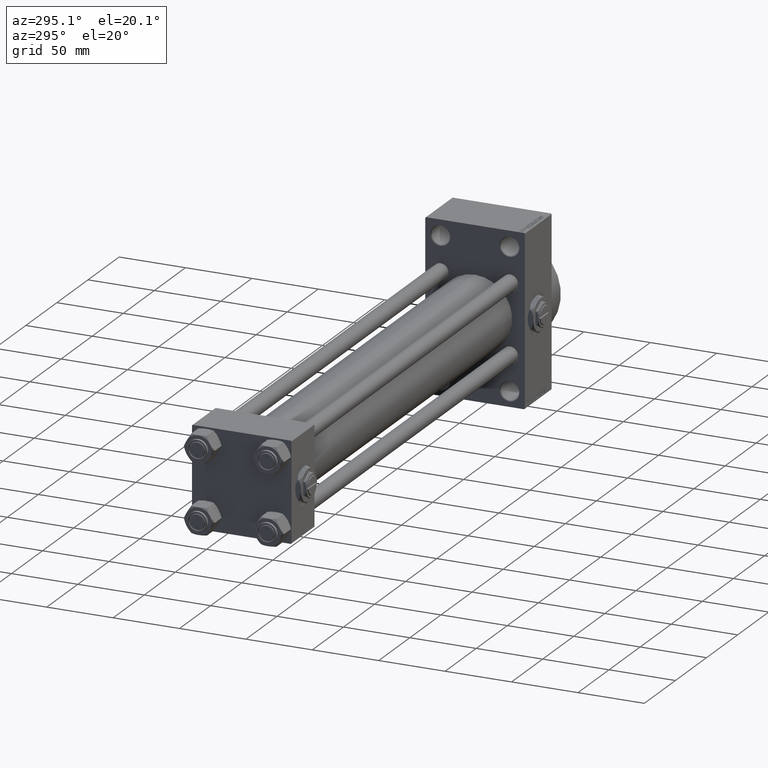
[diagram: clean part render]
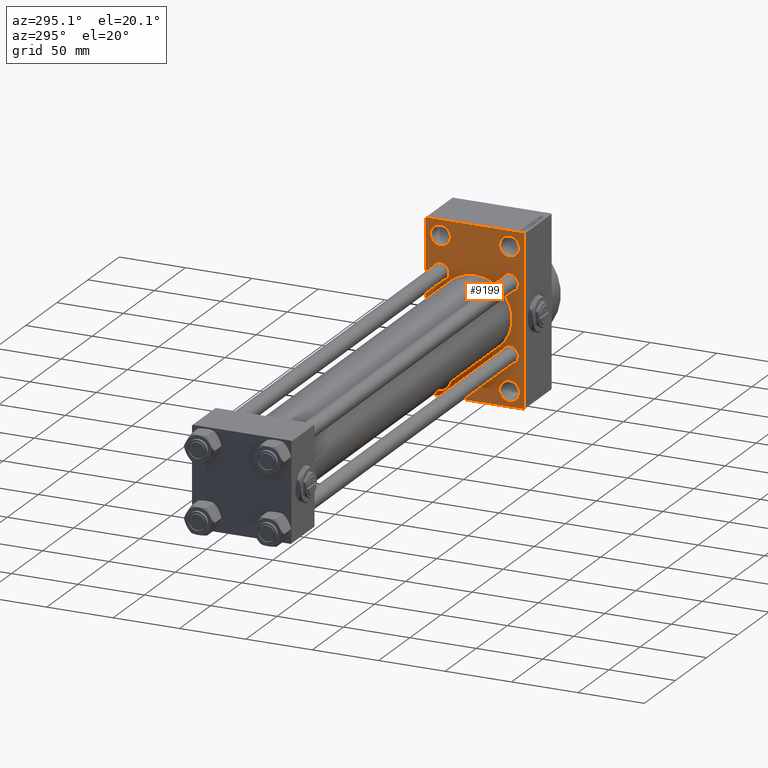
[diagram: same view with one face highlighted and labeled with its STEP entity id]
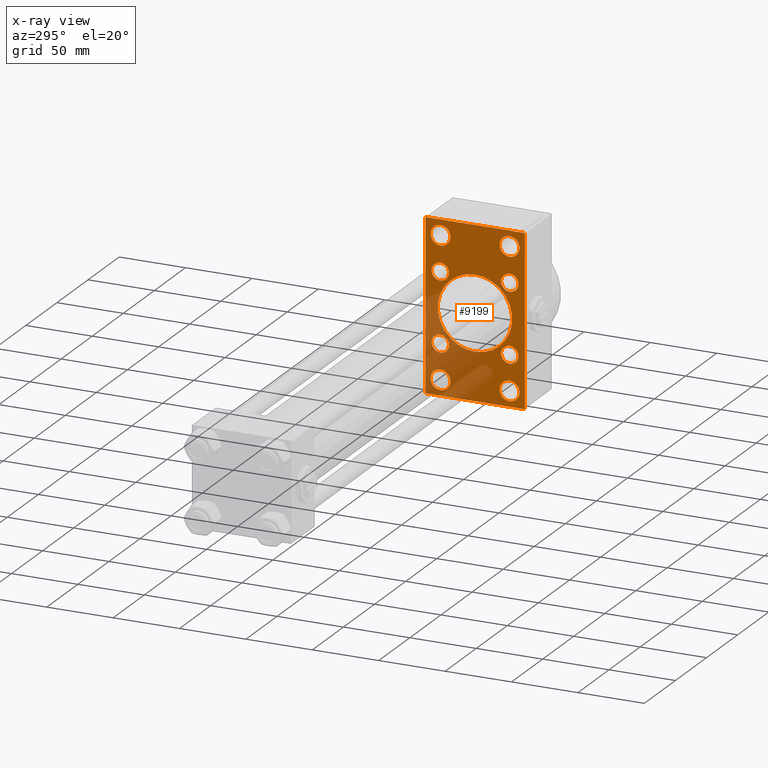
[diagram: x-ray of the same camera — body ghosted, the highlighted face saturated]
A machine part, auxiliary view. The second image highlights one B-rep face of the part: STEP entity #9199.
The next image is the same camera in x-ray: the body ghosted, the highlighted face saturated — about 27% of this face is hidden behind the body in this view.
In plain terms, the highlighted planar face has unit normal (-1, 0, 0).
Its self-contained STEP definition (entity closure, byte-faithful):
#104 = CIRCLE ( 'NONE', #17720, 7.500000000000117240 ) ;
#445 = CIRCLE ( 'NONE', #25243, 7.500000000000117240 ) ;
#872 = ORIENTED_EDGE ( 'NONE', *, *, #15986, .T. ) ;
#1025 = CIRCLE ( 'NONE', #10635, 6.500000000000008882 ) ;
#1586 = CIRCLE ( 'NONE', #18399, 6.500000000000008882 ) ;
#1684 = DIRECTION ( 'NONE',  ( 1.000000000000000000, -0.000000000000000000, 0.000000000000000000 ) ) ;
#2531 = CARTESIAN_POINT ( 'NONE',  ( 375.0000000000000000, 26.14999999999999858, -19.64999999999999503 ) ) ;
#2874 = DIRECTION ( 'NONE',  ( 0.000000000000000000, 0.000000000000000000, 1.000000000000000000 ) ) ;
#2977 = DIRECTION ( 'NONE',  ( 0.000000000000000000, 0.000000000000000000, -1.000000000000000000 ) ) ;
#3120 = DIRECTION ( 'NONE',  ( 1.000000000000000000, -0.000000000000000000, 0.000000000000000000 ) ) ;
#3227 = DIRECTION ( 'NONE',  ( 1.000000000000000000, -0.000000000000000000, 0.000000000000000000 ) ) ;
#3413 = DIRECTION ( 'NONE',  ( 0.000000000000000000, -1.000000000000000000, -1.850371707708594563E-16 ) ) ;
#3661 = EDGE_LOOP ( 'NONE', ( #27365, #15589 ) ) ;
#3766 = DIRECTION ( 'NONE',  ( 0.000000000000000000, 0.000000000000000000, 1.000000000000000000 ) ) ;
#3787 = DIRECTION ( 'NONE',  ( 1.000000000000000000, -0.000000000000000000, 0.000000000000000000 ) ) ;
#3961 = DIRECTION ( 'NONE',  ( 0.000000000000000000, 0.000000000000000000, -1.000000000000000000 ) ) ;
#4136 = ORIENTED_EDGE ( 'NONE', *, *, #20950, .T. ) ;
#4397 = EDGE_CURVE ( 'NONE', #45048, #40664, #18858, .T. ) ;
#4447 = CARTESIAN_POINT ( 'NONE',  ( 375.0000000000000000, 26.14999999999999858, 19.64999999999999147 ) ) ;
#4717 = EDGE_LOOP ( 'NONE', ( #4136, #7734 ) ) ;
#5068 = ORIENTED_EDGE ( 'NONE', *, *, #45119, .T. ) ;
#5356 = AXIS2_PLACEMENT_3D ( 'NONE', #11742, #35263, #35506 ) ;
#5994 = VERTEX_POINT ( 'NONE', #13442 ) ;
#6206 = CARTESIAN_POINT ( 'NONE',  ( 375.0000000000000000, 26.14999999999999858, -26.15000000000000213 ) ) ;
#6747 = CARTESIAN_POINT ( 'NONE',  ( 375.0000000000000000, -26.14999999999999147, -32.65000000000001990 ) ) ;
#6758 = ORIENTED_EDGE ( 'NONE', *, *, #21808, .T. ) ;
#6927 = DIRECTION ( 'NONE',  ( 1.000000000000000000, -0.000000000000000000, 0.000000000000000000 ) ) ;
#7037 = DIRECTION ( 'NONE',  ( 1.000000000000000000, -0.000000000000000000, 0.000000000000000000 ) ) ;
#7039 = VECTOR ( 'NONE', #20960, 1000.000000000000000 ) ;
#7141 = CARTESIAN_POINT ( 'NONE',  ( 375.0000000000000000, -26.14999999999999147, -26.15000000000000924 ) ) ;
#7174 = CIRCLE ( 'NONE', #22359, 6.500000000000008882 ) ;
#7247 = DIRECTION ( 'NONE',  ( 1.000000000000000000, 0.000000000000000000, 0.000000000000000000 ) ) ;
#7385 = CARTESIAN_POINT ( 'NONE',  ( 375.0000000000000000, -26.14999999999999147, -19.65000000000000213 ) ) ;
#7550 = CARTESIAN_POINT ( 'NONE',  ( 375.0000000000000000, -25.99999999999999645, -52.49999999999999289 ) ) ;
#7658 = CARTESIAN_POINT ( 'NONE',  ( 375.0000000000000000, 26.14999999999999858, 26.15000000000000213 ) ) ;
#7734 = ORIENTED_EDGE ( 'NONE', *, *, #27567, .T. ) ;
#7809 = DIRECTION ( 'NONE',  ( -1.000000000000000000, 0.000000000000000000, -0.000000000000000000 ) ) ;
#7853 = CARTESIAN_POINT ( 'NONE',  ( 375.0000000000000000, -25.99999999999999645, 60.00000000000011369 ) ) ;
#8336 = DIRECTION ( 'NONE',  ( 1.000000000000000000, -0.000000000000000000, 0.000000000000000000 ) ) ;
#8826 = AXIS2_PLACEMENT_3D ( 'NONE', #11267, #7037, #3766 ) ;
#8968 = VECTOR ( 'NONE', #30366, 1000.000000000000000 ) ;
#9199 = ADVANCED_FACE ( 'NONE', ( #48351, #14092, #29356, #29599, #10313, #25609, #18097, #33346, #14333, #44848 ), #26834, .T. ) ;
#9445 = ORIENTED_EDGE ( 'NONE', *, *, #13610, .T. ) ;
#9753 = VERTEX_POINT ( 'NONE', #43859 ) ;
#10046 = CARTESIAN_POINT ( 'NONE',  ( 375.0000000000000000, -36.99999999999987210, 63.99999999999997158 ) ) ;
#10135 = DIRECTION ( 'NONE',  ( 0.000000000000000000, 0.000000000000000000, 1.000000000000000000 ) ) ;
#10227 = CIRCLE ( 'NONE', #35031, 7.500000000000117240 ) ;
#10245 = DIRECTION ( 'NONE',  ( 0.000000000000000000, 0.000000000000000000, 1.000000000000000000 ) ) ;
#10260 = VERTEX_POINT ( 'NONE', #46268 ) ;
#10261 = CARTESIAN_POINT ( 'NONE',  ( 375.0000000000000000, 26.00000000000000000, -60.00000000000010658 ) ) ;
#10313 = FACE_BOUND ( 'NONE', #28467, .T. ) ;
#10335 = DIRECTION ( 'NONE',  ( 1.000000000000000000, -0.000000000000000000, 0.000000000000000000 ) ) ;
#10491 = CARTESIAN_POINT ( 'NONE',  ( 375.0000000000000000, 26.00000000000000000, -52.49999999999999289 ) ) ;
#10635 = AXIS2_PLACEMENT_3D ( 'NONE', #48659, #3120, #2874 ) ;
#11026 = VECTOR ( 'NONE', #30750, 1000.000000000000114 ) ;
#11267 = CARTESIAN_POINT ( 'NONE',  ( 375.0000000000000000, -25.99999999999999645, 52.50000000000000000 ) ) ;
#11351 = ORIENTED_EDGE ( 'NONE', *, *, #20051, .T. ) ;
#11515 = EDGE_CURVE ( 'NONE', #22216, #35842, #1025, .T. ) ;
#11558 = ORIENTED_EDGE ( 'NONE', *, *, #11515, .T. ) ;
#11630 = DIRECTION ( 'NONE',  ( 1.000000000000000000, -0.000000000000000000, 0.000000000000000000 ) ) ;
#11742 = CARTESIAN_POINT ( 'NONE',  ( 375.0000000000000000, -26.14999999999999147, -26.15000000000000924 ) ) ;
#11813 = LINE ( 'NONE', #34598, #43875 ) ;
#12049 = VERTEX_POINT ( 'NONE', #28073 ) ;
#12616 = CARTESIAN_POINT ( 'NONE',  ( 375.0000000000000000, 26.14999999999999858, -26.15000000000000213 ) ) ;
#13121 = CARTESIAN_POINT ( 'NONE',  ( 375.0000000000000000, 26.00000000000000000, 52.49999999999999289 ) ) ;
#13442 = CARTESIAN_POINT ( 'NONE',  ( 375.0000000000000000, 37.49999999999999289, -63.50000000000001421 ) ) ;
#13610 = EDGE_CURVE ( 'NONE', #39019, #5994, #18180, .T. ) ;
#13630 = CARTESIAN_POINT ( 'NONE',  ( 375.0000000000000000, -26.14999999999999147, 32.65000000000001990 ) ) ;
#13671 = CIRCLE ( 'NONE', #8826, 7.500000000000117240 ) ;
#13924 = VERTEX_POINT ( 'NONE', #39043 ) ;
#13935 = ORIENTED_EDGE ( 'NONE', *, *, #33607, .T. ) ;
#14092 = FACE_BOUND ( 'NONE', #24085, .T. ) ;
#14113 = VECTOR ( 'NONE', #25425, 1000.000000000000114 ) ;
#14333 = FACE_BOUND ( 'NONE', #47483, .T. ) ;
#14402 = CARTESIAN_POINT ( 'NONE',  ( 375.0000000000000000, 26.00000000000000000, -52.49999999999999289 ) ) ;
#14533 = VERTEX_POINT ( 'NONE', #19168 ) ;
#14659 = DIRECTION ( 'NONE',  ( 1.000000000000000000, -0.000000000000000000, 0.000000000000000000 ) ) ;
#14878 = VERTEX_POINT ( 'NONE', #47278 ) ;
#15064 = DIRECTION ( 'NONE',  ( 0.000000000000000000, 0.000000000000000000, 1.000000000000000000 ) ) ;
#15065 = VERTEX_POINT ( 'NONE', #6747 ) ;
#15107 = CARTESIAN_POINT ( 'NONE',  ( 375.0000000000000000, -37.49999999999999289, 63.99999999999997158 ) ) ;
#15209 = AXIS2_PLACEMENT_3D ( 'NONE', #46031, #18551, #26058 ) ;
#15496 = CARTESIAN_POINT ( 'NONE',  ( 375.0000000000000000, 26.14999999999999858, -32.65000000000001279 ) ) ;
#15589 = ORIENTED_EDGE ( 'NONE', *, *, #20921, .T. ) ;
#15758 = CIRCLE ( 'NONE', #38935, 7.500000000000117240 ) ;
#15986 = EDGE_CURVE ( 'NONE', #21216, #24717, #30773, .T. ) ;
#16040 = CIRCLE ( 'NONE', #15209, 6.500000000000008882 ) ;
#16119 = DIRECTION ( 'NONE',  ( 0.000000000000000000, 0.000000000000000000, 1.000000000000000000 ) ) ;
#16147 = ORIENTED_EDGE ( 'NONE', *, *, #4397, .F. ) ;
#16816 = ORIENTED_EDGE ( 'NONE', *, *, #25147, .T. ) ;
#17197 = ORIENTED_EDGE ( 'NONE', *, *, #19311, .T. ) ;
#17720 = AXIS2_PLACEMENT_3D ( 'NONE', #13121, #20383, #28143 ) ;
#17732 = EDGE_LOOP ( 'NONE', ( #24626, #37887 ) ) ;
#18097 = FACE_BOUND ( 'NONE', #18585, .T. ) ;
#18180 = LINE ( 'NONE', #29934, #29876 ) ;
#18186 = AXIS2_PLACEMENT_3D ( 'NONE', #12616, #11630, #19153 ) ;
#18256 = EDGE_CURVE ( 'NONE', #26914, #10260, #445, .T. ) ;
#18399 = AXIS2_PLACEMENT_3D ( 'NONE', #7658, #6927, #37451 ) ;
#18551 = DIRECTION ( 'NONE',  ( 1.000000000000000000, -0.000000000000000000, 0.000000000000000000 ) ) ;
#18585 = EDGE_LOOP ( 'NONE', ( #42030, #6758 ) ) ;
#18786 = CARTESIAN_POINT ( 'NONE',  ( 375.0000000000000000, -50.49999999999949551, -50.50000000000089528 ) ) ;
#18812 = VERTEX_POINT ( 'NONE', #10046 ) ;
#18858 = LINE ( 'NONE', #15107, #8968 ) ;
#19153 = DIRECTION ( 'NONE',  ( 0.000000000000000000, 0.000000000000000000, 1.000000000000000000 ) ) ;
#19168 = CARTESIAN_POINT ( 'NONE',  ( 375.0000000000000000, 26.00000000000000000, 44.99999999999987210 ) ) ;
#19311 = EDGE_CURVE ( 'NONE', #14878, #14533, #19684, .T. ) ;
#19375 = EDGE_CURVE ( 'NONE', #44284, #18812, #37949, .T. ) ;
#19684 = CIRCLE ( 'NONE', #46806, 7.500000000000117240 ) ;
#20051 = EDGE_CURVE ( 'NONE', #44284, #39019, #21909, .T. ) ;
#20383 = DIRECTION ( 'NONE',  ( 1.000000000000000000, -0.000000000000000000, 0.000000000000000000 ) ) ;
#20921 = EDGE_CURVE ( 'NONE', #15065, #21030, #36541, .T. ) ;
#20950 = EDGE_CURVE ( 'NONE', #42265, #47412, #15758, .T. ) ;
#20960 = DIRECTION ( 'NONE',  ( -0.000000000000000000, -0.7071067811865573427, -0.7071067811865378028 ) ) ;
#21030 = VERTEX_POINT ( 'NONE', #7385 ) ;
#21216 = VERTEX_POINT ( 'NONE', #47864 ) ;
#21808 = EDGE_CURVE ( 'NONE', #44752, #43432, #43728, .T. ) ;
#21909 = LINE ( 'NONE', #48894, #14113 ) ;
#22216 = VERTEX_POINT ( 'NONE', #31346 ) ;
#22359 = AXIS2_PLACEMENT_3D ( 'NONE', #30116, #10335, #36877 ) ;
#22920 = CARTESIAN_POINT ( 'NONE',  ( 375.0000000000000000, -36.99999999999999289, -64.00000000000001421 ) ) ;
#22989 = DIRECTION ( 'NONE',  ( 1.000000000000000000, 0.000000000000000000, 0.000000000000000000 ) ) ;
#23375 = CARTESIAN_POINT ( 'NONE',  ( 375.0000000000000000, 37.50000000000000000, 63.49999999999998579 ) ) ;
#23862 = AXIS2_PLACEMENT_3D ( 'NONE', #10491, #3227, #10245 ) ;
#23989 = ORIENTED_EDGE ( 'NONE', *, *, #27361, .T. ) ;
#24085 = EDGE_LOOP ( 'NONE', ( #23989, #872 ) ) ;
#24306 = EDGE_CURVE ( 'NONE', #21030, #15065, #49257, .T. ) ;
#24390 = CARTESIAN_POINT ( 'NONE',  ( 375.0000000000000000, 26.00000000000000000, -44.99999999999987210 ) ) ;
#24626 = ORIENTED_EDGE ( 'NONE', *, *, #18256, .T. ) ;
#24717 = VERTEX_POINT ( 'NONE', #28684 ) ;
#25147 = EDGE_CURVE ( 'NONE', #25872, #40664, #38037, .T. ) ;
#25243 = AXIS2_PLACEMENT_3D ( 'NONE', #41675, #38180, #37935 ) ;
#25425 = DIRECTION ( 'NONE',  ( 0.000000000000000000, 0.7071067811865474617, -0.7071067811865474617 ) ) ;
#25609 = FACE_BOUND ( 'NONE', #34446, .T. ) ;
#25685 = CIRCLE ( 'NONE', #32858, 28.00000000000000000 ) ;
#25872 = VERTEX_POINT ( 'NONE', #22920 ) ;
#26058 = DIRECTION ( 'NONE',  ( 0.000000000000000000, 0.000000000000000000, 1.000000000000000000 ) ) ;
#26512 = ORIENTED_EDGE ( 'NONE', *, *, #36663, .T. ) ;
#26834 = PLANE ( 'NONE',  #45786 ) ;
#26914 = VERTEX_POINT ( 'NONE', #7853 ) ;
#27361 = EDGE_CURVE ( 'NONE', #24717, #21216, #10227, .T. ) ;
#27365 = ORIENTED_EDGE ( 'NONE', *, *, #24306, .T. ) ;
#27567 = EDGE_CURVE ( 'NONE', #47412, #42265, #39038, .T. ) ;
#27903 = EDGE_CURVE ( 'NONE', #43432, #44752, #30288, .T. ) ;
#28073 = CARTESIAN_POINT ( 'NONE',  ( 375.0000000000000000, -2.602085213965210642E-15, 28.00000000000000000 ) ) ;
#28126 = ORIENTED_EDGE ( 'NONE', *, *, #29547, .T. ) ;
#28143 = DIRECTION ( 'NONE',  ( 0.000000000000000000, 0.000000000000000000, 1.000000000000000000 ) ) ;
#28467 = EDGE_LOOP ( 'NONE', ( #42235, #40763 ) ) ;
#28578 = VECTOR ( 'NONE', #48536, 1000.000000000000000 ) ;
#28684 = CARTESIAN_POINT ( 'NONE',  ( 375.0000000000000000, -25.99999999999999645, -44.99999999999987210 ) ) ;
#29086 = CARTESIAN_POINT ( 'NONE',  ( 375.0000000000000000, 37.00000000000000000, 63.99999999999998579 ) ) ;
#29356 = FACE_BOUND ( 'NONE', #4717, .T. ) ;
#29471 = DIRECTION ( 'NONE',  ( 0.000000000000000000, 0.000000000000000000, 1.000000000000000000 ) ) ;
#29547 = EDGE_CURVE ( 'NONE', #13924, #25872, #11813, .T. ) ;
#29599 = FACE_BOUND ( 'NONE', #38782, .T. ) ;
#29876 = VECTOR ( 'NONE', #45173, 1000.000000000000000 ) ;
#29928 = VERTEX_POINT ( 'NONE', #37918 ) ;
#29934 = CARTESIAN_POINT ( 'NONE',  ( 375.0000000000000000, 37.50000000000000000, 63.99999999999998579 ) ) ;
#30069 = EDGE_CURVE ( 'NONE', #29928, #36983, #7174, .T. ) ;
#30116 = CARTESIAN_POINT ( 'NONE',  ( 375.0000000000000000, -26.14999999999999147, 26.15000000000000924 ) ) ;
#30200 = DIRECTION ( 'NONE',  ( 0.000000000000000000, 0.000000000000000000, 1.000000000000000000 ) ) ;
#30246 = CARTESIAN_POINT ( 'NONE',  ( 375.0000000000000000, -50.49999999999761968, 50.50000000000392220 ) ) ;
#30288 = CIRCLE ( 'NONE', #47840, 6.500000000000008882 ) ;
#30366 = DIRECTION ( 'NONE',  ( 0.000000000000000000, 0.000000000000000000, -1.000000000000000000 ) ) ;
#30750 = DIRECTION ( 'NONE',  ( -0.000000000000000000, 0.7071067811865916486, 0.7071067811865033859 ) ) ;
#30773 = CIRCLE ( 'NONE', #32374, 7.500000000000117240 ) ;
#31065 = ORIENTED_EDGE ( 'NONE', *, *, #33843, .T. ) ;
#31346 = CARTESIAN_POINT ( 'NONE',  ( 375.0000000000000000, 26.14999999999999858, 32.65000000000001990 ) ) ;
#31984 = CARTESIAN_POINT ( 'NONE',  ( 375.0000000000000000, 26.00000000000000000, 52.49999999999999289 ) ) ;
#32374 = AXIS2_PLACEMENT_3D ( 'NONE', #34867, #8336, #16119 ) ;
#32858 = AXIS2_PLACEMENT_3D ( 'NONE', #41746, #22989, #3961 ) ;
#33346 = FACE_BOUND ( 'NONE', #3661, .T. ) ;
#33607 = EDGE_CURVE ( 'NONE', #12049, #9753, #25685, .T. ) ;
#33703 = CARTESIAN_POINT ( 'NONE',  ( 375.0000000000000000, 37.50000000000000000, 63.99999999999998579 ) ) ;
#33843 = EDGE_CURVE ( 'NONE', #14533, #14878, #104, .T. ) ;
#34152 = DIRECTION ( 'NONE',  ( 1.000000000000000000, -0.000000000000000000, 0.000000000000000000 ) ) ;
#34446 = EDGE_LOOP ( 'NONE', ( #11558, #5068 ) ) ;
#34598 = CARTESIAN_POINT ( 'NONE',  ( 375.0000000000000000, 37.49999999999999289, -64.00000000000000000 ) ) ;
#34867 = CARTESIAN_POINT ( 'NONE',  ( 375.0000000000000000, -25.99999999999999645, -52.49999999999999289 ) ) ;
#34978 = EDGE_LOOP ( 'NONE', ( #28126, #16816, #16147, #26512, #38738, #11351, #9445, #40297 ) ) ;
#35031 = AXIS2_PLACEMENT_3D ( 'NONE', #7550, #3787, #15064 ) ;
#35084 = DIRECTION ( 'NONE',  ( 0.000000000000000000, -1.000000000000000000, -1.850371707708594563E-16 ) ) ;
#35258 = EDGE_CURVE ( 'NONE', #36983, #29928, #16040, .T. ) ;
#35263 = DIRECTION ( 'NONE',  ( 1.000000000000000000, -0.000000000000000000, 0.000000000000000000 ) ) ;
#35506 = DIRECTION ( 'NONE',  ( 0.000000000000000000, 0.000000000000000000, 1.000000000000000000 ) ) ;
#35842 = VERTEX_POINT ( 'NONE', #4447 ) ;
#36324 = EDGE_CURVE ( 'NONE', #10260, #26914, #13671, .T. ) ;
#36469 = VECTOR ( 'NONE', #3413, 1000.000000000000000 ) ;
#36541 = CIRCLE ( 'NONE', #45305, 6.500000000000008882 ) ;
#36611 = AXIS2_PLACEMENT_3D ( 'NONE', #48763, #7247, #2977 ) ;
#36663 = EDGE_CURVE ( 'NONE', #45048, #18812, #45240, .T. ) ;
#36727 = DIRECTION ( 'NONE',  ( 1.000000000000000000, -0.000000000000000000, 0.000000000000000000 ) ) ;
#36877 = DIRECTION ( 'NONE',  ( 0.000000000000000000, 0.000000000000000000, 1.000000000000000000 ) ) ;
#36983 = VERTEX_POINT ( 'NONE', #13630 ) ;
#37278 = CARTESIAN_POINT ( 'NONE',  ( 375.0000000000000000, -37.49999999999999289, -63.50000000000002842 ) ) ;
#37451 = DIRECTION ( 'NONE',  ( 0.000000000000000000, 0.000000000000000000, 1.000000000000000000 ) ) ;
#37619 = EDGE_CURVE ( 'NONE', #5994, #13924, #44207, .T. ) ;
#37887 = ORIENTED_EDGE ( 'NONE', *, *, #36324, .T. ) ;
#37918 = CARTESIAN_POINT ( 'NONE',  ( 375.0000000000000000, -26.14999999999999147, 19.65000000000000213 ) ) ;
#37935 = DIRECTION ( 'NONE',  ( 0.000000000000000000, 0.000000000000000000, 1.000000000000000000 ) ) ;
#37949 = LINE ( 'NONE', #33703, #36469 ) ;
#38037 = LINE ( 'NONE', #18786, #28578 ) ;
#38180 = DIRECTION ( 'NONE',  ( 1.000000000000000000, -0.000000000000000000, 0.000000000000000000 ) ) ;
#38738 = ORIENTED_EDGE ( 'NONE', *, *, #19375, .F. ) ;
#38782 = EDGE_LOOP ( 'NONE', ( #17197, #31065 ) ) ;
#38935 = AXIS2_PLACEMENT_3D ( 'NONE', #14402, #14659, #45154 ) ;
#39019 = VERTEX_POINT ( 'NONE', #23375 ) ;
#39038 = CIRCLE ( 'NONE', #23862, 7.500000000000117240 ) ;
#39043 = CARTESIAN_POINT ( 'NONE',  ( 375.0000000000000000, 36.99999999999999289, -64.00000000000000000 ) ) ;
#39806 = EDGE_CURVE ( 'NONE', #9753, #12049, #42163, .T. ) ;
#39964 = CARTESIAN_POINT ( 'NONE',  ( 375.0000000000000000, 50.49999999999948841, -50.50000000000088107 ) ) ;
#40297 = ORIENTED_EDGE ( 'NONE', *, *, #37619, .T. ) ;
#40664 = VERTEX_POINT ( 'NONE', #37278 ) ;
#40763 = ORIENTED_EDGE ( 'NONE', *, *, #30069, .T. ) ;
#41675 = CARTESIAN_POINT ( 'NONE',  ( 375.0000000000000000, -25.99999999999999645, 52.50000000000000000 ) ) ;
#41746 = CARTESIAN_POINT ( 'NONE',  ( 375.0000000000000000, -2.602085213965210642E-15, 0.000000000000000000 ) ) ;
#42030 = ORIENTED_EDGE ( 'NONE', *, *, #27903, .T. ) ;
#42074 = CARTESIAN_POINT ( 'NONE',  ( 375.0000000000000000, 0.000000000000000000, 0.000000000000000000 ) ) ;
#42163 = CIRCLE ( 'NONE', #36611, 28.00000000000000000 ) ;
#42235 = ORIENTED_EDGE ( 'NONE', *, *, #35258, .T. ) ;
#42265 = VERTEX_POINT ( 'NONE', #24390 ) ;
#42317 = DIRECTION ( 'NONE',  ( -0.000000000000000000, 0.000000000000000000, 1.000000000000000000 ) ) ;
#42845 = CARTESIAN_POINT ( 'NONE',  ( 375.0000000000000000, -37.49999999999999289, 63.49999999999991473 ) ) ;
#43040 = ORIENTED_EDGE ( 'NONE', *, *, #39806, .T. ) ;
#43432 = VERTEX_POINT ( 'NONE', #2531 ) ;
#43728 = CIRCLE ( 'NONE', #18186, 6.500000000000008882 ) ;
#43859 = CARTESIAN_POINT ( 'NONE',  ( 375.0000000000000000, 8.269258236473784371E-16, -28.00000000000000000 ) ) ;
#43875 = VECTOR ( 'NONE', #35084, 1000.000000000000000 ) ;
#44207 = LINE ( 'NONE', #39964, #7039 ) ;
#44284 = VERTEX_POINT ( 'NONE', #29086 ) ;
#44752 = VERTEX_POINT ( 'NONE', #15496 ) ;
#44848 = FACE_OUTER_BOUND ( 'NONE', #34978, .T. ) ;
#45048 = VERTEX_POINT ( 'NONE', #42845 ) ;
#45119 = EDGE_CURVE ( 'NONE', #35842, #22216, #1586, .T. ) ;
#45154 = DIRECTION ( 'NONE',  ( 0.000000000000000000, 0.000000000000000000, 1.000000000000000000 ) ) ;
#45173 = DIRECTION ( 'NONE',  ( 0.000000000000000000, -5.421010862427522170E-17, -1.000000000000000000 ) ) ;
#45240 = LINE ( 'NONE', #30246, #11026 ) ;
#45305 = AXIS2_PLACEMENT_3D ( 'NONE', #7141, #34152, #10135 ) ;
#45786 = AXIS2_PLACEMENT_3D ( 'NONE', #42074, #7809, #42317 ) ;
#46031 = CARTESIAN_POINT ( 'NONE',  ( 375.0000000000000000, -26.14999999999999147, 26.15000000000000924 ) ) ;
#46268 = CARTESIAN_POINT ( 'NONE',  ( 375.0000000000000000, -25.99999999999999645, 44.99999999999987921 ) ) ;
#46806 = AXIS2_PLACEMENT_3D ( 'NONE', #31984, #1684, #30200 ) ;
#47278 = CARTESIAN_POINT ( 'NONE',  ( 375.0000000000000000, 26.00000000000000000, 60.00000000000010658 ) ) ;
#47412 = VERTEX_POINT ( 'NONE', #10261 ) ;
#47483 = EDGE_LOOP ( 'NONE', ( #13935, #43040 ) ) ;
#47840 = AXIS2_PLACEMENT_3D ( 'NONE', #6206, #36727, #29471 ) ;
#47864 = CARTESIAN_POINT ( 'NONE',  ( 375.0000000000000000, -25.99999999999999645, -60.00000000000010658 ) ) ;
#48351 = FACE_BOUND ( 'NONE', #17732, .T. ) ;
#48536 = DIRECTION ( 'NONE',  ( 0.000000000000000000, -0.7071067811865573427, 0.7071067811865378028 ) ) ;
#48659 = CARTESIAN_POINT ( 'NONE',  ( 375.0000000000000000, 26.14999999999999858, 26.15000000000000213 ) ) ;
#48763 = CARTESIAN_POINT ( 'NONE',  ( 375.0000000000000000, -2.602085213965210642E-15, 0.000000000000000000 ) ) ;
#48894 = CARTESIAN_POINT ( 'NONE',  ( 375.0000000000000000, 50.49999999999998579, 50.49999999999998579 ) ) ;
#49257 = CIRCLE ( 'NONE', #5356, 6.500000000000008882 ) ;